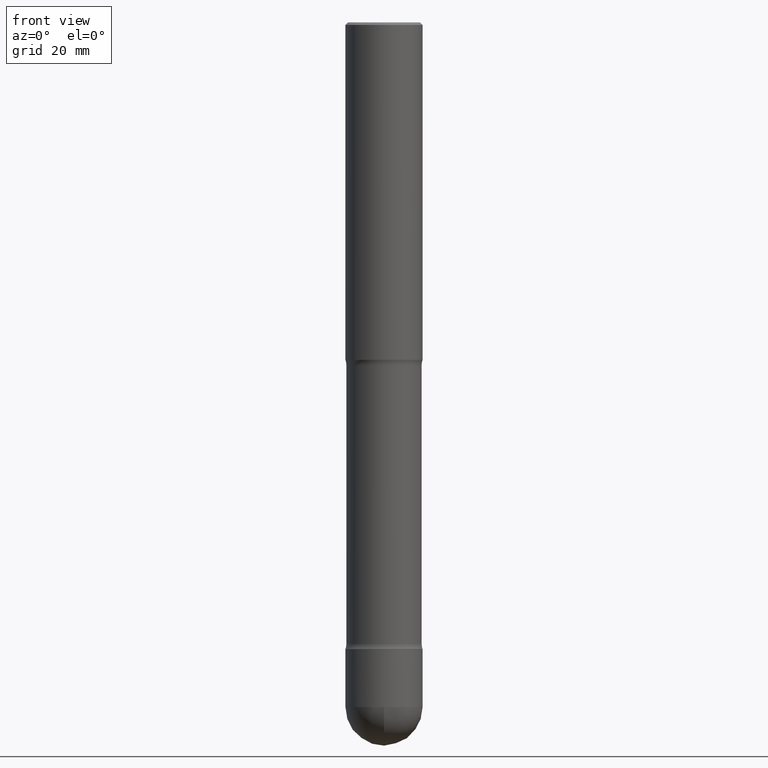
[diagram: clean part render]
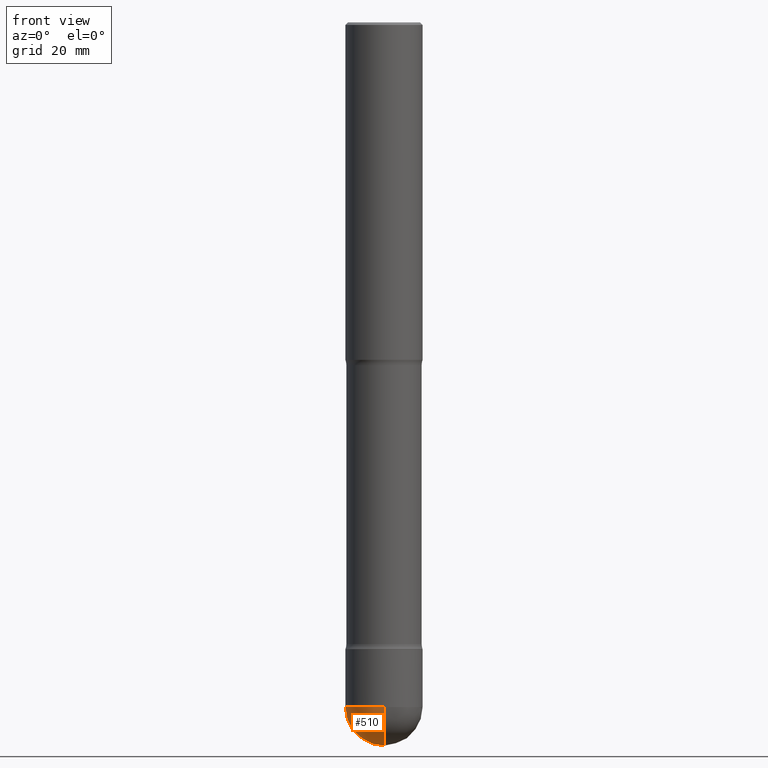
[diagram: same view with one face highlighted and labeled with its STEP entity id]
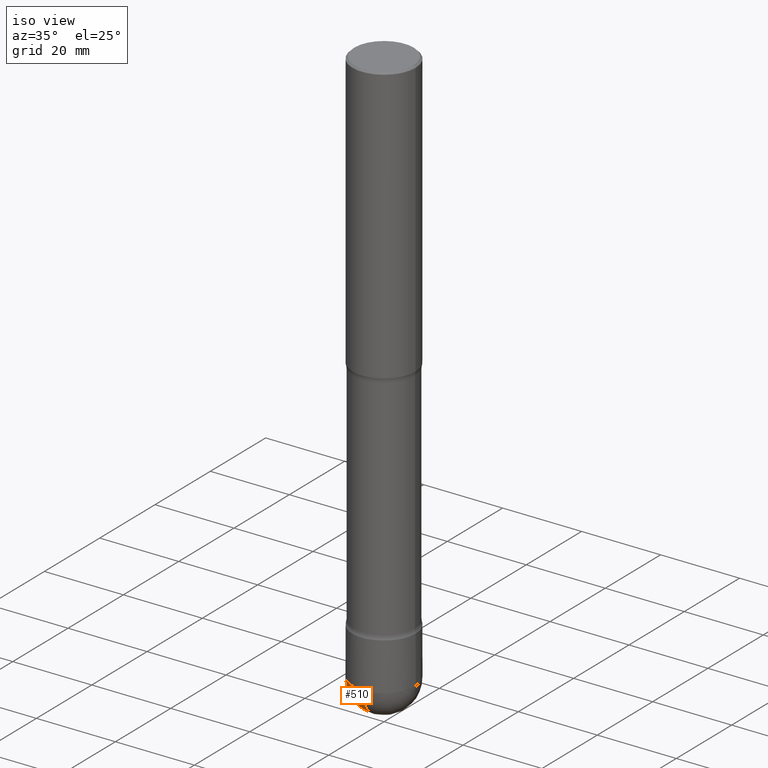
[diagram: same view with one face highlighted and labeled with its STEP entity id]
A machine part, front view. The second image highlights one B-rep face of the part: STEP entity #510.
A second angle (iso view) of the same face is appended — the face is thin or edge-on in the first view.
In plain terms, the highlighted spherical surface has radius 7.9997 mm.
Its self-contained STEP definition (entity closure, byte-faithful):
#7 = AXIS2_PLACEMENT_3D ( 'NONE', #373, #77, #253 ) ;
#11 = FACE_OUTER_BOUND ( 'NONE', #497, .T. ) ;
#13 = VERTEX_POINT ( 'NONE', #545 ) ;
#32 = DIRECTION ( 'NONE',  ( 6.982962677686266711E-15, 1.000000000000000000, 0.000000000000000000 ) ) ;
#43 = CIRCLE ( 'NONE', #7, 0.3149499999999997302 ) ;
#49 = CARTESIAN_POINT ( 'NONE',  ( 1.364458217214061005E-28, -1.955787124980869236E-14, -5.590549999999999464 ) ) ;
#61 = VERTEX_POINT ( 'NONE', #307 ) ;
#74 = CARTESIAN_POINT ( 'NONE',  ( 1.364458217214061005E-28, -1.955787124980869236E-14, -5.590549999999999464 ) ) ;
#77 = DIRECTION ( 'NONE',  ( -1.000000000000000000, 7.105427357601001070E-15, -4.926315508542082329E-29 ) ) ;
#94 = DIRECTION ( 'NONE',  ( 1.000000000000000000, -6.982962677686261977E-15, 0.000000000000000000 ) ) ;
#108 = AXIS2_PLACEMENT_3D ( 'NONE', #257, #369, #509 ) ;
#142 = CIRCLE ( 'NONE', #108, 0.3149499999999990085 ) ;
#149 = CARTESIAN_POINT ( 'NONE',  ( 1.367151563441831346E-28, -1.951930099886954466E-14, -5.590549999999999464 ) ) ;
#155 = CIRCLE ( 'NONE', #475, 0.3149499999999997302 ) ;
#162 = EDGE_CURVE ( 'NONE', #368, #61, #43, .T. ) ;
#172 = DIRECTION ( 'NONE',  ( -1.000000000000000000, 6.982962677686266711E-15, -4.883557194083112901E-29 ) ) ;
#202 = AXIS2_PLACEMENT_3D ( 'NONE', #149, #403, #94 ) ;
#226 = ORIENTED_EDGE ( 'NONE', *, *, #256, .F. ) ;
#249 = DIRECTION ( 'NONE',  ( 1.000000000000000000, -6.982962677686265922E-15, 4.883557194083112340E-29 ) ) ;
#252 = CIRCLE ( 'NONE', #202, 0.3149499999999990085 ) ;
#253 = DIRECTION ( 'NONE',  ( -7.105427357601000281E-15, -1.000000000000000000, 0.000000000000000000 ) ) ;
#256 = EDGE_CURVE ( 'NONE', #505, #61, #142, .T. ) ;
#257 = CARTESIAN_POINT ( 'NONE',  ( 1.367151563441831346E-28, -1.951930099886954466E-14, -5.590549999999999464 ) ) ;
#263 = EDGE_CURVE ( 'NONE', #368, #13, #155, .T. ) ;
#265 = AXIS2_PLACEMENT_3D ( 'NONE', #49, #172, #303 ) ;
#303 = DIRECTION ( 'NONE',  ( 6.982962677686266711E-15, 1.000000000000000000, -3.469564049740295925E-15 ) ) ;
#307 = CARTESIAN_POINT ( 'NONE',  ( -2.237854346276293990E-15, -0.3149500000000188815, -5.590549999999997688 ) ) ;
#368 = VERTEX_POINT ( 'NONE', #562 ) ;
#369 = DIRECTION ( 'NONE',  ( -2.445468806185136597E-29, 3.491481338843145583E-15, 1.000000000000000000 ) ) ;
#373 = CARTESIAN_POINT ( 'NONE',  ( 1.364458217214061005E-28, -1.955787124980869236E-14, -5.590549999999999464 ) ) ;
#403 = DIRECTION ( 'NONE',  ( -2.445468806185136597E-29, 3.491481338843145583E-15, 1.000000000000000000 ) ) ;
#415 = ORIENTED_EDGE ( 'NONE', *, *, #263, .F. ) ;
#441 = ORIENTED_EDGE ( 'NONE', *, *, #162, .T. ) ;
#445 = EDGE_CURVE ( 'NONE', #13, #505, #252, .T. ) ;
#468 = ORIENTED_EDGE ( 'NONE', *, *, #445, .F. ) ;
#475 = AXIS2_PLACEMENT_3D ( 'NONE', #74, #249, #32 ) ;
#483 = CARTESIAN_POINT ( 'NONE',  ( -0.3149499999999990085, -1.645667147332489546E-14, -5.590549999999999464 ) ) ;
#494 = SPHERICAL_SURFACE ( 'NONE', #265, 0.3149499999999997302 ) ;
#497 = EDGE_LOOP ( 'NONE', ( #415, #441, #226, #468 ) ) ;
#505 = VERTEX_POINT ( 'NONE', #483 ) ;
#509 = DIRECTION ( 'NONE',  ( 1.000000000000000000, -6.982962677686261977E-15, 0.000000000000000000 ) ) ;
#510 = ADVANCED_FACE ( 'NONE', ( #11 ), #494, .T. ) ;
#545 = CARTESIAN_POINT ( 'NONE',  ( 2.199284095337421611E-15, 0.3149499999999798017, -5.590550000000000352 ) ) ;
#562 = CARTESIAN_POINT ( 'NONE',  ( 1.442824930378747100E-28, -2.063822817200776423E-14, -5.905499999999998195 ) ) ;